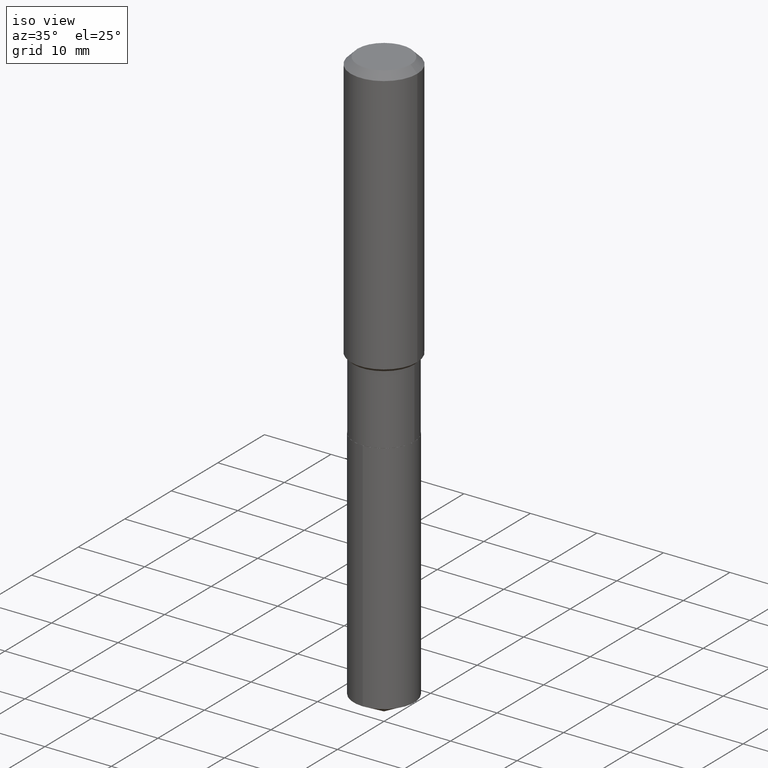
[diagram: clean part render]
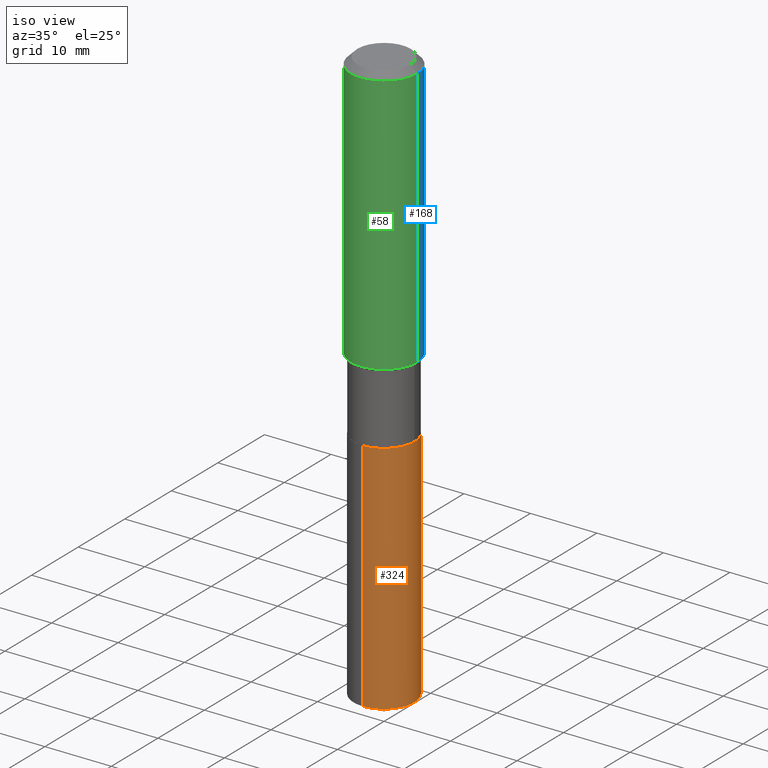
[diagram: same view with three faces highlighted in distinct colors, each labeled with its STEP entity id]
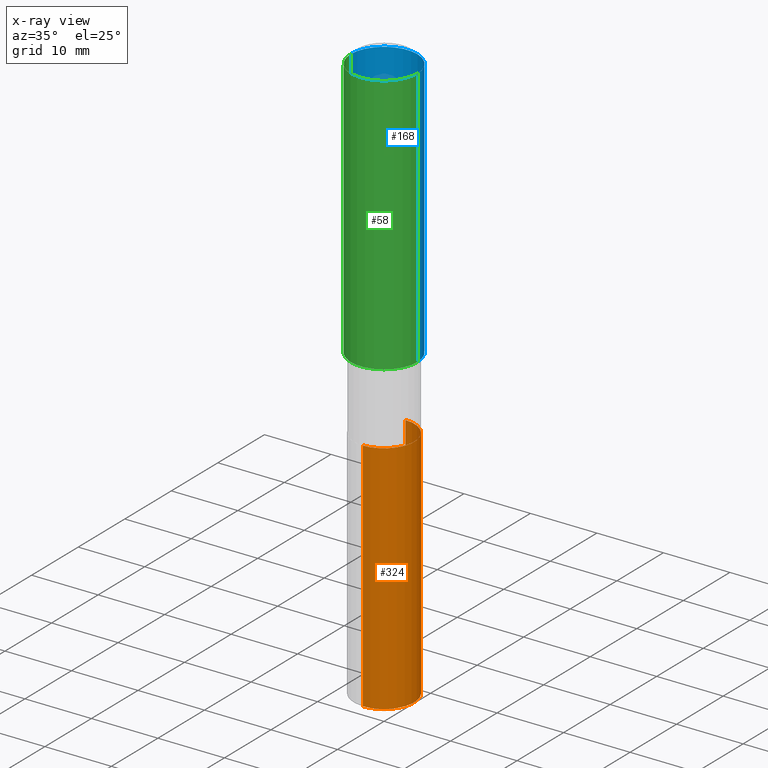
[diagram: x-ray of the same camera — body ghosted, the three highlighted faces saturated]
A machine part, iso view with three faces highlighted in distinct colors.
The next image is the same camera in x-ray (body ghosted, the three faces saturated) — at least one of them is partly hidden behind the body in this view.
Their STEP definitions:

[orange] entity #324 — the highlighted cylindrical surface (partial cylindrical patch) has radius 4.5644 mm, axis along (-0, 0, 1).
#8 = AXIS2_PLACEMENT_3D ( 'NONE', #248, #286, #432 ) ;
#16 = CARTESIAN_POINT ( 'NONE',  ( -1.254838393180172821E-15, -0.1797000000000070208, -2.012899999999999245 ) ) ;
#36 = ORIENTED_EDGE ( 'NONE', *, *, #115, .F. ) ;
#40 = CARTESIAN_POINT ( 'NONE',  ( -1.254838393180172821E-15, -0.1797000000000070208, -2.012899999999999245 ) ) ;
#80 = EDGE_LOOP ( 'NONE', ( #401, #408, #36, #91 ) ) ;
#82 = CARTESIAN_POINT ( 'NONE',  ( -1.254838393180138308E-15, -0.1797000000000118503, -3.408351815130432616 ) ) ;
#91 = ORIENTED_EDGE ( 'NONE', *, *, #471, .F. ) ;
#113 = DIRECTION ( 'NONE',  ( -6.982962677686265922E-15, -1.000000000000000000, 3.040454083098790380E-15 ) ) ;
#115 = EDGE_CURVE ( 'NONE', #300, #310, #438, .T. ) ;
#123 = VERTEX_POINT ( 'NONE', #144 ) ;
#144 = CARTESIAN_POINT ( 'NONE',  ( 1.276845296160983249E-15, 0.1796999999999880915, -3.408351815130433504 ) ) ;
#161 = EDGE_CURVE ( 'NONE', #123, #310, #329, .T. ) ;
#182 = CARTESIAN_POINT ( 'NONE',  ( 1.276845296160983249E-15, 0.1796999999999929765, -2.012900000000000134 ) ) ;
#203 = VECTOR ( 'NONE', #472, 39.37007874015748143 ) ;
#207 = LINE ( 'NONE', #16, #203 ) ;
#232 = EDGE_CURVE ( 'NONE', #259, #123, #474, .T. ) ;
#248 = CARTESIAN_POINT ( 'NONE',  ( 8.335094467611322016E-29, -1.190008731636025747E-14, -3.408351815130433060 ) ) ;
#259 = VERTEX_POINT ( 'NONE', #82 ) ;
#262 = CARTESIAN_POINT ( 'NONE',  ( 1.276845296160949131E-15, 0.1796999999999929765, -2.012900000000000134 ) ) ;
#263 = DIRECTION ( 'NONE',  ( -2.445523572107205951E-29, 3.491402910925659802E-15, 1.000000000000000000 ) ) ;
#273 = FACE_OUTER_BOUND ( 'NONE', #80, .T. ) ;
#286 = DIRECTION ( 'NONE',  ( -2.445523572107205951E-29, 3.491402910925659802E-15, 1.000000000000000000 ) ) ;
#290 = AXIS2_PLACEMENT_3D ( 'NONE', #425, #485, #350 ) ;
#291 = AXIS2_PLACEMENT_3D ( 'NONE', #484, #263, #113 ) ;
#300 = VERTEX_POINT ( 'NONE', #40 ) ;
#310 = VERTEX_POINT ( 'NONE', #182 ) ;
#321 = VECTOR ( 'NONE', #443, 39.37007874015748143 ) ;
#324 = ADVANCED_FACE ( 'NONE', ( #273 ), #450, .T. ) ;
#329 = LINE ( 'NONE', #262, #321 ) ;
#350 = DIRECTION ( 'NONE',  ( -6.982962677686265922E-15, -1.000000000000000000, 3.040454083098790380E-15 ) ) ;
#401 = ORIENTED_EDGE ( 'NONE', *, *, #232, .T. ) ;
#408 = ORIENTED_EDGE ( 'NONE', *, *, #161, .T. ) ;
#425 = CARTESIAN_POINT ( 'NONE',  ( 4.922484159970061082E-29, -7.028002786957366746E-15, -2.012899999999999689 ) ) ;
#432 = DIRECTION ( 'NONE',  ( -6.982962677686265922E-15, -1.000000000000000000, 3.040454083098790380E-15 ) ) ;
#438 = CIRCLE ( 'NONE', #290, 0.1796999999999999986 ) ;
#443 = DIRECTION ( 'NONE',  ( -2.445523572107205951E-29, 3.491402910925659802E-15, 1.000000000000000000 ) ) ;
#450 = CYLINDRICAL_SURFACE ( 'NONE', #291, 0.1796999999999999986 ) ;
#471 = EDGE_CURVE ( 'NONE', #259, #300, #207, .T. ) ;
#472 = DIRECTION ( 'NONE',  ( -2.445523572107205951E-29, 3.491402910925659802E-15, 1.000000000000000000 ) ) ;
#474 = CIRCLE ( 'NONE', #8, 0.1796999999999999986 ) ;
#484 = CARTESIAN_POINT ( 'NONE',  ( 4.922484159970061082E-29, -7.028002786957366746E-15, -2.012899999999999689 ) ) ;
#485 = DIRECTION ( 'NONE',  ( -2.445523572107205951E-29, 3.491402910925659802E-15, 1.000000000000000000 ) ) ;

[blue] entity #168 — the highlighted cylindrical surface (partial cylindrical patch) has radius 5 mm, axis along (-0, 0, 1).
#7 = CARTESIAN_POINT ( 'NONE',  ( 0.1968500000000000250, -1.512055823412797189E-15, -0.03937000000000029365 ) ) ;
#17 = AXIS2_PLACEMENT_3D ( 'NONE', #349, #416, #346 ) ;
#18 = AXIS2_PLACEMENT_3D ( 'NONE', #311, #143, #453 ) ;
#22 = ORIENTED_EDGE ( 'NONE', *, *, #206, .F. ) ;
#49 = EDGE_CURVE ( 'NONE', #141, #261, #410, .T. ) ;
#74 = CIRCLE ( 'NONE', #18, 0.1968500000000002192 ) ;
#98 = ORIENTED_EDGE ( 'NONE', *, *, #337, .T. ) ;
#109 = CYLINDRICAL_SURFACE ( 'NONE', #280, 0.1968500000000001082 ) ;
#141 = VERTEX_POINT ( 'NONE', #7 ) ;
#143 = DIRECTION ( 'NONE',  ( -2.445468806185136597E-29, 3.491481338843145583E-15, 1.000000000000000000 ) ) ;
#168 = ADVANCED_FACE ( 'NONE', ( #409 ), #109, .T. ) ;
#172 = CARTESIAN_POINT ( 'NONE',  ( 0.1968500000000002192, -6.899690847754875584E-15, -1.582449999999999468 ) ) ;
#206 = EDGE_CURVE ( 'NONE', #279, #141, #251, .T. ) ;
#216 = ORIENTED_EDGE ( 'NONE', *, *, #49, .F. ) ;
#236 = DIRECTION ( 'NONE',  ( -2.445468806185136597E-29, 3.491481338843145583E-15, 1.000000000000000000 ) ) ;
#244 = CARTESIAN_POINT ( 'NONE',  ( -0.1968500000000000250, -1.432573757137536399E-15, -0.03937000000000029365 ) ) ;
#251 = LINE ( 'NONE', #397, #403 ) ;
#261 = VERTEX_POINT ( 'NONE', #244 ) ;
#278 = CARTESIAN_POINT ( 'NONE',  ( 0.000000000000000000, 0.000000000000000000, 0.000000000000000000 ) ) ;
#279 = VERTEX_POINT ( 'NONE', #172 ) ;
#280 = AXIS2_PLACEMENT_3D ( 'NONE', #278, #236, #358 ) ;
#311 = CARTESIAN_POINT ( 'NONE',  ( 3.869832112347667949E-29, -5.525094644652333976E-15, -1.582449999999999468 ) ) ;
#337 = EDGE_CURVE ( 'NONE', #476, #261, #369, .T. ) ;
#346 = DIRECTION ( 'NONE',  ( 1.000000000000000000, -6.982962677686265922E-15, 0.000000000000000000 ) ) ;
#349 = CARTESIAN_POINT ( 'NONE',  ( 9.627810689950954155E-31, -1.374596203102556547E-16, -0.03937000000000029365 ) ) ;
#358 = DIRECTION ( 'NONE',  ( 1.000000000000000000, -6.982962677686266711E-15, 4.876176775795935793E-29 ) ) ;
#369 = LINE ( 'NONE', #411, #388 ) ;
#371 = EDGE_CURVE ( 'NONE', #279, #476, #74, .T. ) ;
#377 = DIRECTION ( 'NONE',  ( -2.445468806185136877E-29, 3.491481338843145188E-15, 1.000000000000000000 ) ) ;
#388 = VECTOR ( 'NONE', #377, 39.37007874015748143 ) ;
#397 = CARTESIAN_POINT ( 'NONE',  ( 0.1968500000000001082, -1.374596203102542397E-15, 9.598753983154305062E-30 ) ) ;
#398 = CARTESIAN_POINT ( 'NONE',  ( -0.1968500000000002192, -4.126391269308574611E-15, -1.582449999999999468 ) ) ;
#400 = DIRECTION ( 'NONE',  ( -2.445468806185136877E-29, 3.491481338843145188E-15, 1.000000000000000000 ) ) ;
#403 = VECTOR ( 'NONE', #400, 39.37007874015748143 ) ;
#409 = FACE_OUTER_BOUND ( 'NONE', #478, .T. ) ;
#410 = CIRCLE ( 'NONE', #17, 0.1968500000000000250 ) ;
#411 = CARTESIAN_POINT ( 'NONE',  ( -0.1968500000000001082, 1.398703375343757985E-15, -9.682923725166787881E-30 ) ) ;
#416 = DIRECTION ( 'NONE',  ( -2.445468806185136597E-29, 3.491481338843145583E-15, 1.000000000000000000 ) ) ;
#441 = ORIENTED_EDGE ( 'NONE', *, *, #371, .T. ) ;
#453 = DIRECTION ( 'NONE',  ( 1.000000000000000000, -6.982962677686265922E-15, 0.000000000000000000 ) ) ;
#476 = VERTEX_POINT ( 'NONE', #398 ) ;
#478 = EDGE_LOOP ( 'NONE', ( #441, #98, #216, #22 ) ) ;

[green] entity #58 — the highlighted cylindrical surface (partial cylindrical patch) has radius 5 mm, axis along (-0, 0, 1).
#6 = EDGE_CURVE ( 'NONE', #261, #141, #393, .T. ) ;
#7 = CARTESIAN_POINT ( 'NONE',  ( 0.1968500000000000250, -1.512055823412797189E-15, -0.03937000000000029365 ) ) ;
#58 = ADVANCED_FACE ( 'NONE', ( #151 ), #114, .T. ) ;
#66 = EDGE_LOOP ( 'NONE', ( #178, #340, #95, #367 ) ) ;
#79 = CARTESIAN_POINT ( 'NONE',  ( 9.627810689950954155E-31, -1.374596203102556547E-16, -0.03937000000000029365 ) ) ;
#85 = AXIS2_PLACEMENT_3D ( 'NONE', #274, #188, #489 ) ;
#95 = ORIENTED_EDGE ( 'NONE', *, *, #206, .T. ) ;
#114 = CYLINDRICAL_SURFACE ( 'NONE', #85, 0.1968500000000001082 ) ;
#141 = VERTEX_POINT ( 'NONE', #7 ) ;
#151 = FACE_OUTER_BOUND ( 'NONE', #66, .T. ) ;
#172 = CARTESIAN_POINT ( 'NONE',  ( 0.1968500000000002192, -6.899690847754875584E-15, -1.582449999999999468 ) ) ;
#178 = ORIENTED_EDGE ( 'NONE', *, *, #337, .F. ) ;
#180 = AXIS2_PLACEMENT_3D ( 'NONE', #79, #237, #196 ) ;
#181 = AXIS2_PLACEMENT_3D ( 'NONE', #185, #272, #487 ) ;
#185 = CARTESIAN_POINT ( 'NONE',  ( 3.869832112347667949E-29, -5.525094644652333976E-15, -1.582449999999999468 ) ) ;
#188 = DIRECTION ( 'NONE',  ( -2.445468806185136597E-29, 3.491481338843145583E-15, 1.000000000000000000 ) ) ;
#196 = DIRECTION ( 'NONE',  ( 1.000000000000000000, -6.982962677686265922E-15, 0.000000000000000000 ) ) ;
#206 = EDGE_CURVE ( 'NONE', #279, #141, #251, .T. ) ;
#237 = DIRECTION ( 'NONE',  ( -2.445468806185136597E-29, 3.491481338843145583E-15, 1.000000000000000000 ) ) ;
#244 = CARTESIAN_POINT ( 'NONE',  ( -0.1968500000000000250, -1.432573757137536399E-15, -0.03937000000000029365 ) ) ;
#251 = LINE ( 'NONE', #397, #403 ) ;
#261 = VERTEX_POINT ( 'NONE', #244 ) ;
#272 = DIRECTION ( 'NONE',  ( -2.445468806185136597E-29, 3.491481338843145583E-15, 1.000000000000000000 ) ) ;
#274 = CARTESIAN_POINT ( 'NONE',  ( 0.000000000000000000, 0.000000000000000000, 0.000000000000000000 ) ) ;
#279 = VERTEX_POINT ( 'NONE', #172 ) ;
#305 = CIRCLE ( 'NONE', #181, 0.1968500000000002192 ) ;
#337 = EDGE_CURVE ( 'NONE', #476, #261, #369, .T. ) ;
#340 = ORIENTED_EDGE ( 'NONE', *, *, #418, .T. ) ;
#367 = ORIENTED_EDGE ( 'NONE', *, *, #6, .F. ) ;
#369 = LINE ( 'NONE', #411, #388 ) ;
#377 = DIRECTION ( 'NONE',  ( -2.445468806185136877E-29, 3.491481338843145188E-15, 1.000000000000000000 ) ) ;
#388 = VECTOR ( 'NONE', #377, 39.37007874015748143 ) ;
#393 = CIRCLE ( 'NONE', #180, 0.1968500000000000250 ) ;
#397 = CARTESIAN_POINT ( 'NONE',  ( 0.1968500000000001082, -1.374596203102542397E-15, 9.598753983154305062E-30 ) ) ;
#398 = CARTESIAN_POINT ( 'NONE',  ( -0.1968500000000002192, -4.126391269308574611E-15, -1.582449999999999468 ) ) ;
#400 = DIRECTION ( 'NONE',  ( -2.445468806185136877E-29, 3.491481338843145188E-15, 1.000000000000000000 ) ) ;
#403 = VECTOR ( 'NONE', #400, 39.37007874015748143 ) ;
#411 = CARTESIAN_POINT ( 'NONE',  ( -0.1968500000000001082, 1.398703375343757985E-15, -9.682923725166787881E-30 ) ) ;
#418 = EDGE_CURVE ( 'NONE', #476, #279, #305, .T. ) ;
#476 = VERTEX_POINT ( 'NONE', #398 ) ;
#487 = DIRECTION ( 'NONE',  ( 1.000000000000000000, -6.982962677686265922E-15, 0.000000000000000000 ) ) ;
#489 = DIRECTION ( 'NONE',  ( 1.000000000000000000, -6.982962677686266711E-15, 4.876176775795935793E-29 ) ) ;